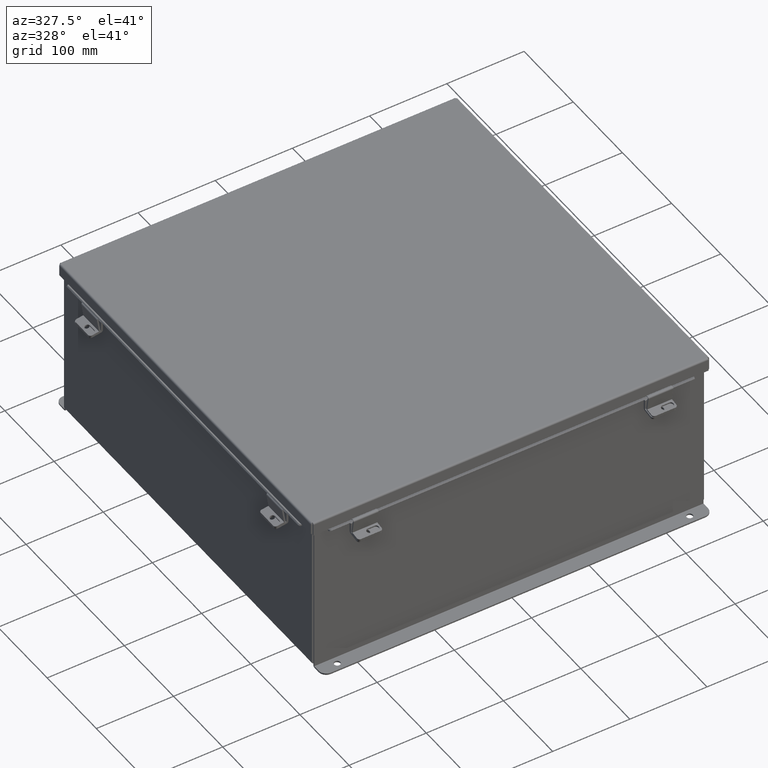
[diagram: clean part render]
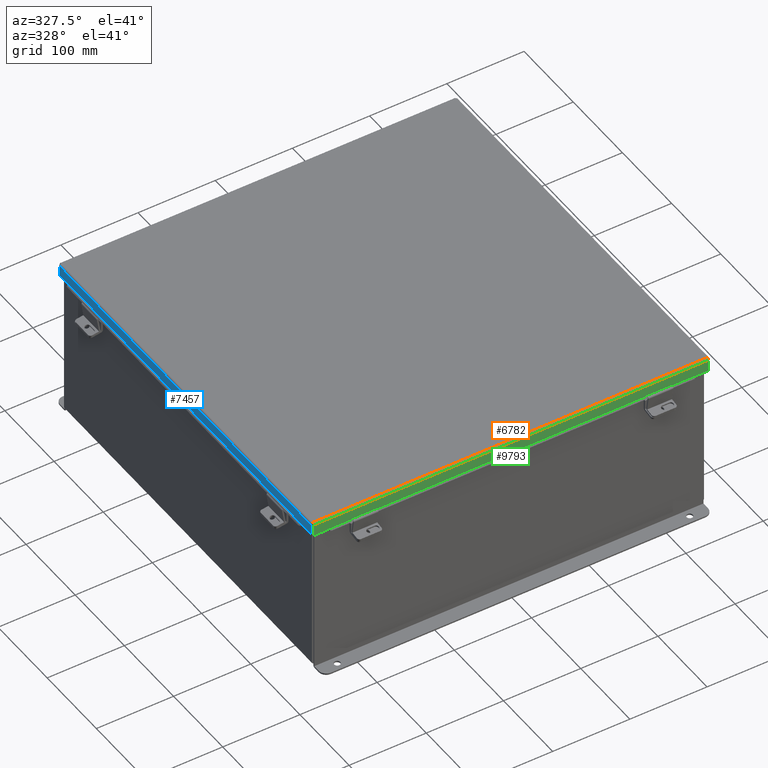
[diagram: same view with three faces highlighted in distinct colors, each labeled with its STEP entity id]
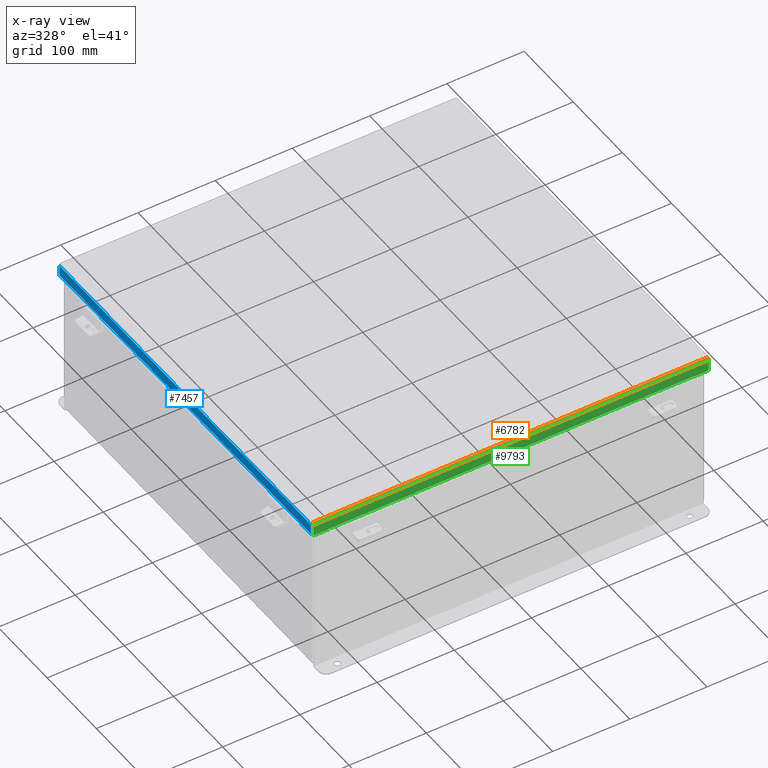
[diagram: x-ray of the same camera — body ghosted, the three highlighted faces saturated]
A machine part, auxiliary view with three faces highlighted in distinct colors.
The next image is the same camera in x-ray (body ghosted, the three faces saturated) — at least one of them is partly hidden behind the body in this view.
Their STEP definitions:

[orange] entity #6782 — the highlighted cylindrical surface (edge-blend (fillet) strip) has radius 2.2276 mm, axis along (-1, 0, -0).
#1 = ORIENTED_EDGE ( 'NONE', *, *, #3556, .T. ) ;
#52 = CARTESIAN_POINT ( 'NONE',  ( -10.07447893218816900, -10.15625000000001400, 0.01300000000000010700 ) ) ;
#137 = EDGE_CURVE ( 'NONE', #9836, #7455, #4497, .T. ) ;
#167 = CARTESIAN_POINT ( 'NONE',  ( -10.07447893218816900, -10.15625000000001400, 0.01300000000000010700 ) ) ;
#227 = CARTESIAN_POINT ( 'NONE',  ( 10.07102038841175300, -10.12244574734181400, -0.05713078207831037700 ) ) ;
#597 = ORIENTED_EDGE ( 'NONE', *, *, #4188, .F. ) ;
#992 = CARTESIAN_POINT ( 'NONE',  ( 10.06953815536472500, -10.09150528945832200, -0.07241740374380169200 ) ) ;
#1298 = CARTESIAN_POINT ( 'NONE',  ( 10.07447893218816900, -10.15625000000001400, 0.01300000000000229300 ) ) ;
#1766 = CARTESIAN_POINT ( 'NONE',  ( 10.06855000000003600, -10.06855000000001400, -0.07469999999999797600 ) ) ;
#2060 = ORIENTED_EDGE ( 'NONE', *, *, #137, .F. ) ;
#2447 = LINE ( 'NONE', #5033, #2930 ) ;
#2530 = VERTEX_POINT ( 'NONE', #1298 ) ;
#2715 = CARTESIAN_POINT ( 'NONE',  ( -10.06953815536472700, -10.09150528945832500, -0.07241740374380344100 ) ) ;
#2930 = VECTOR ( 'NONE', #3471, 39.37007874015748100 ) ;
#3355 = FACE_OUTER_BOUND ( 'NONE', #7904, .T. ) ;
#3455 = VERTEX_POINT ( 'NONE', #52 ) ;
#3471 = DIRECTION ( 'NONE',  ( -1.000000000000000000, 1.075927825196965600E-016, -1.075927825197003600E-016 ) ) ;
#3531 = DIRECTION ( 'NONE',  ( 1.000000000000000000, 3.205297876175390800E-030, 8.208677865577550200E-017 ) ) ;
#3556 = EDGE_CURVE ( 'NONE', #2530, #3455, #2447, .T. ) ;
#4008 = CARTESIAN_POINT ( 'NONE',  ( 10.07447893218816900, -10.15625000000001400, 0.01300000000000229300 ) ) ;
#4047 = CARTESIAN_POINT ( 'NONE',  ( 10.07349077682348000, -10.15396740374382700, -0.009955289458297652400 ) ) ;
#4104 = CARTESIAN_POINT ( 'NONE',  ( 10.06855000000003600, -10.06855000000001400, -0.07469999999999797600 ) ) ;
#4188 = EDGE_CURVE ( 'NONE', #7455, #3455, #7197, .T. ) ;
#4193 = CARTESIAN_POINT ( 'NONE',  ( -10.06904407768237800, -10.08002990315500600, -0.07469999999999210600 ) ) ;
#4308 = CARTESIAN_POINT ( 'NONE',  ( -10.07102038841175500, -10.12244574734181200, -0.05713078207831287500 ) ) ;
#4431 = DIRECTION ( 'NONE',  ( -1.000000000000000000, -3.205297876175390800E-030, -8.208677865577550200E-017 ) ) ;
#4477 = CARTESIAN_POINT ( 'NONE',  ( -10.07052631072941700, -10.11271738457854100, -0.06363106625866074600 ) ) ;
#4497 = LINE ( 'NONE', #5182, #7057 ) ;
#4643 = CARTESIAN_POINT ( 'NONE',  ( -10.07398485450582400, -10.15625000000001400, 0.001520096845013949100 ) ) ;
#4800 = CARTESIAN_POINT ( 'NONE',  ( 10.07398485450582400, -10.15625000000001200, 0.001520096845018755800 ) ) ;
#4823 = CARTESIAN_POINT ( 'NONE',  ( 10.07200854377644600, -10.13868078207833400, -0.04089574734178955100 ) ) ;
#4905 = CARTESIAN_POINT ( 'NONE',  ( -10.07349077682348000, -10.15396740374382400, -0.009955289458302082900 ) ) ;
#5033 = CARTESIAN_POINT ( 'NONE',  ( -10.15625000000003200, -10.15625000000001200, 0.01300000000000010700 ) ) ;
#5037 = CARTESIAN_POINT ( 'NONE',  ( 10.07447893218816900, -10.06855000000001400, 0.01300000000000994100 ) ) ;
#5182 = CARTESIAN_POINT ( 'NONE',  ( 10.07447893218816900, -10.06855000000001400, -0.07469999999999033000 ) ) ;
#5543 = B_SPLINE_CURVE_WITH_KNOTS ( 'NONE', 3,
 ( #4008, #4800, #4047, #9320, #4823, #227, #5585, #992, #6329, #1766 ),
 .UNSPECIFIED., .F., .F.,
 ( 4, 2, 2, 2, 4 ),
 ( 0.0000000000000000000, 0.2500000000000000000, 0.5000000000000000000, 0.7500000000000000000, 1.000000000000000000 ),
 .UNSPECIFIED. ) ;
#5585 = CARTESIAN_POINT ( 'NONE',  ( 10.07052631072941500, -10.11271738457854300, -0.06363106625865856700 ) ) ;
#5958 = AXIS2_PLACEMENT_3D ( 'NONE', #5037, #3531, #8043 ) ;
#6148 = CARTESIAN_POINT ( 'NONE',  ( -10.07200854377644800, -10.13868078207833400, -0.04089574734179279200 ) ) ;
#6329 = CARTESIAN_POINT ( 'NONE',  ( 10.06904407768238100, -10.08002990315500600, -0.07469999999999046800 ) ) ;
#6782 = ADVANCED_FACE ( 'NONE', ( #3355 ), #9149, .T. ) ;
#7057 = VECTOR ( 'NONE', #4431, 39.37007874015748100 ) ;
#7197 = B_SPLINE_CURVE_WITH_KNOTS ( 'NONE', 3,
 ( #8222, #4193, #2715, #4477, #4308, #6148, #8838, #4905, #4643, #167 ),
 .UNSPECIFIED., .F., .F.,
 ( 4, 2, 2, 2, 4 ),
 ( 0.0000000000000000000, 0.2500000000000000000, 0.5000000000000000000, 0.7500000000000000000, 1.000000000000000000 ),
 .UNSPECIFIED. ) ;
#7235 = CARTESIAN_POINT ( 'NONE',  ( -10.06855000000003200, -10.06855000000001400, -0.07470000000000015500 ) ) ;
#7271 = EDGE_CURVE ( 'NONE', #2530, #9836, #5543, .T. ) ;
#7455 = VERTEX_POINT ( 'NONE', #7235 ) ;
#7904 = EDGE_LOOP ( 'NONE', ( #2060, #8421, #1, #597 ) ) ;
#8043 = DIRECTION ( 'NONE',  ( 0.0000000000000000000, -1.000000000000000000, 0.0000000000000000000 ) ) ;
#8222 = CARTESIAN_POINT ( 'NONE',  ( -10.06855000000003200, -10.06855000000001400, -0.07470000000000015500 ) ) ;
#8421 = ORIENTED_EDGE ( 'NONE', *, *, #7271, .F. ) ;
#8838 = CARTESIAN_POINT ( 'NONE',  ( -10.07250262145879000, -10.14518106625868100, -0.03116738457852079700 ) ) ;
#9149 = CYLINDRICAL_SURFACE ( 'NONE', #5958, 0.08770000000000026400 ) ;
#9320 = CARTESIAN_POINT ( 'NONE',  ( 10.07250262145879200, -10.14518106625868500, -0.03116738457851715000 ) ) ;
#9836 = VERTEX_POINT ( 'NONE', #4104 ) ;

[blue] entity #7457 — the highlighted planar face has unit normal (1, -0, 0).
#6 = CARTESIAN_POINT ( 'NONE',  ( 10.15625000000003900, 9.324478932188135600, 0.5502999999999999000 ) ) ;
#48 = LINE ( 'NONE', #1828, #7670 ) ;
#49 = CARTESIAN_POINT ( 'NONE',  ( 10.15625000000003900, -9.324478932188133800, 0.5347115427318777100 ) ) ;
#343 = VECTOR ( 'NONE', #9206, 39.37007874015748100 ) ;
#352 = EDGE_CURVE ( 'NONE', #4761, #5396, #2510, .T. ) ;
#424 = DIRECTION ( 'NONE',  ( -1.000000000000000000, -3.214874041279299500E-030, 3.971430846686186800E-015 ) ) ;
#568 = VERTEX_POINT ( 'NONE', #2591 ) ;
#748 = VECTOR ( 'NONE', #7269, 39.37007874015748100 ) ;
#752 = EDGE_CURVE ( 'NONE', #7569, #5686, #1220, .T. ) ;
#788 = EDGE_CURVE ( 'NONE', #5686, #3839, #2049, .T. ) ;
#1128 = ORIENTED_EDGE ( 'NONE', *, *, #4132, .F. ) ;
#1220 = LINE ( 'NONE', #49, #748 ) ;
#1385 = DIRECTION ( 'NONE',  ( 0.0000000000000000000, 7.009925220119831300E-014, 1.000000000000000000 ) ) ;
#1398 = ORIENTED_EDGE ( 'NONE', *, *, #352, .F. ) ;
#1439 = EDGE_CURVE ( 'NONE', #5396, #2475, #48, .T. ) ;
#1686 = LINE ( 'NONE', #7488, #3500 ) ;
#1760 = ORIENTED_EDGE ( 'NONE', *, *, #1439, .F. ) ;
#1827 = LINE ( 'NONE', #7784, #5903 ) ;
#1828 = CARTESIAN_POINT ( 'NONE',  ( 10.15625000000003600, -10.07447893218814800, 0.0000000000000000000 ) ) ;
#2010 = ORIENTED_EDGE ( 'NONE', *, *, #4513, .T. ) ;
#2049 = LINE ( 'NONE', #6363, #3258 ) ;
#2109 = ORIENTED_EDGE ( 'NONE', *, *, #788, .F. ) ;
#2381 = EDGE_CURVE ( 'NONE', #568, #2475, #2988, .T. ) ;
#2475 = VERTEX_POINT ( 'NONE', #7522 ) ;
#2510 = LINE ( 'NONE', #3992, #343 ) ;
#2591 = CARTESIAN_POINT ( 'NONE',  ( 10.15625000000003900, -9.324478932188133800, 0.5502999999999999000 ) ) ;
#2594 = VECTOR ( 'NONE', #3192, 39.37007874015748100 ) ;
#2642 = DIRECTION ( 'NONE',  ( -1.401985044024124300E-013, -7.009925220120601200E-014, -1.000000000000000000 ) ) ;
#2690 = CARTESIAN_POINT ( 'NONE',  ( 10.15625000000003600, 0.0000000000000000000, -4.043135030623109600E-014 ) ) ;
#2825 = VERTEX_POINT ( 'NONE', #5714 ) ;
#2988 = LINE ( 'NONE', #8180, #4180 ) ;
#3192 = DIRECTION ( 'NONE',  ( 3.971430846686186800E-015, 1.846427556282924300E-029, 1.000000000000000000 ) ) ;
#3258 = VECTOR ( 'NONE', #1385, 39.37007874015748100 ) ;
#3500 = VECTOR ( 'NONE', #8553, 39.37007874015748100 ) ;
#3589 = DIRECTION ( 'NONE',  ( 3.971430846686186800E-015, 1.846427556282924300E-029, 1.000000000000000000 ) ) ;
#3837 = DIRECTION ( 'NONE',  ( -3.166671605124525800E-030, -1.000000000000000000, -1.853823127269377700E-029 ) ) ;
#3839 = VERTEX_POINT ( 'NONE', #6 ) ;
#3992 = CARTESIAN_POINT ( 'NONE',  ( 10.15625000000003600, -10.15625000000001600, 0.01300000000000010700 ) ) ;
#4052 = ORIENTED_EDGE ( 'NONE', *, *, #752, .F. ) ;
#4132 = EDGE_CURVE ( 'NONE', #568, #7569, #1827, .T. ) ;
#4180 = VECTOR ( 'NONE', #3837, 39.37007874015748100 ) ;
#4211 = AXIS2_PLACEMENT_3D ( 'NONE', #2690, #424, #5760 ) ;
#4488 = EDGE_LOOP ( 'NONE', ( #1128, #7115, #1760, #1398, #2010, #7780, #2109, #4052 ) ) ;
#4513 = EDGE_CURVE ( 'NONE', #4761, #2825, #7339, .T. ) ;
#4542 = CARTESIAN_POINT ( 'NONE',  ( 10.15625000000003600, -10.07447893218815200, 0.01300000000000010700 ) ) ;
#4761 = VERTEX_POINT ( 'NONE', #9397 ) ;
#5396 = VERTEX_POINT ( 'NONE', #4542 ) ;
#5686 = VERTEX_POINT ( 'NONE', #6990 ) ;
#5714 = CARTESIAN_POINT ( 'NONE',  ( 10.15625000000003900, 10.07447893218811600, 0.5502999999999999000 ) ) ;
#5760 = DIRECTION ( 'NONE',  ( 3.971430846686186800E-015, 1.846427556282924000E-029, 1.000000000000000000 ) ) ;
#5855 = EDGE_CURVE ( 'NONE', #2825, #3839, #1686, .T. ) ;
#5903 = VECTOR ( 'NONE', #2642, 39.37007874015748100 ) ;
#6363 = CARTESIAN_POINT ( 'NONE',  ( 10.15625000000003900, 9.324478932188132100, 0.5347115427318766000 ) ) ;
#6913 = FACE_OUTER_BOUND ( 'NONE', #4488, .T. ) ;
#6990 = CARTESIAN_POINT ( 'NONE',  ( 10.15625000000003900, 9.324478932188132100, 0.5347115427318766000 ) ) ;
#7115 = ORIENTED_EDGE ( 'NONE', *, *, #2381, .T. ) ;
#7269 = DIRECTION ( 'NONE',  ( 3.166671605124525800E-030, 1.000000000000000000, 1.853823127269377700E-029 ) ) ;
#7339 = LINE ( 'NONE', #7731, #2594 ) ;
#7457 = ADVANCED_FACE ( 'NONE', ( #6913 ), #8760, .F. ) ;
#7488 = CARTESIAN_POINT ( 'NONE',  ( 10.15625000000003900, -4.268512490100411300E-018, 0.5502999999999999000 ) ) ;
#7522 = CARTESIAN_POINT ( 'NONE',  ( 10.15625000000003900, -10.07447893218814800, 0.5502999999999999000 ) ) ;
#7569 = VERTEX_POINT ( 'NONE', #8900 ) ;
#7670 = VECTOR ( 'NONE', #3589, 39.37007874015748100 ) ;
#7731 = CARTESIAN_POINT ( 'NONE',  ( 10.15625000000003600, 10.07447893218811800, -4.043135030623109600E-014 ) ) ;
#7780 = ORIENTED_EDGE ( 'NONE', *, *, #5855, .T. ) ;
#7784 = CARTESIAN_POINT ( 'NONE',  ( 10.15625000000004100, -9.324478932188133800, 0.5502999999999976800 ) ) ;
#8180 = CARTESIAN_POINT ( 'NONE',  ( 10.15625000000003900, -4.268512490100411300E-018, 0.5502999999999999000 ) ) ;
#8553 = DIRECTION ( 'NONE',  ( -3.166671605124525800E-030, -1.000000000000000000, -1.853823127269377700E-029 ) ) ;
#8760 = PLANE ( 'NONE',  #4211 ) ;
#8900 = CARTESIAN_POINT ( 'NONE',  ( 10.15625000000003900, -9.324478932188133800, 0.5347115427318777100 ) ) ;
#9206 = DIRECTION ( 'NONE',  ( -3.166671605124525800E-030, -1.000000000000000000, -1.853823127269377700E-029 ) ) ;
#9397 = CARTESIAN_POINT ( 'NONE',  ( 10.15625000000003600, 10.07447893218811600, 0.01299999999999901400 ) ) ;

[green] entity #9793 — the highlighted planar face has unit normal (0, 1, 0).
#38 = LINE ( 'NONE', #2777, #9296 ) ;
#52 = CARTESIAN_POINT ( 'NONE',  ( -10.07447893218816900, -10.15625000000001400, 0.01300000000000010700 ) ) ;
#73 = EDGE_CURVE ( 'NONE', #3455, #4444, #7417, .T. ) ;
#251 = DIRECTION ( 'NONE',  ( 1.075927825196965200E-016, 1.000000000000000000, 1.873544649899903000E-029 ) ) ;
#349 = CARTESIAN_POINT ( 'NONE',  ( -10.07447893218816600, -10.15625000000001400, 0.6122999999999994000 ) ) ;
#479 = VECTOR ( 'NONE', #8574, 39.37007874015748100 ) ;
#669 = ORIENTED_EDGE ( 'NONE', *, *, #6855, .T. ) ;
#702 = ORIENTED_EDGE ( 'NONE', *, *, #7786, .F. ) ;
#1046 = VERTEX_POINT ( 'NONE', #1541 ) ;
#1074 = VECTOR ( 'NONE', #2028, 39.37007874015748100 ) ;
#1165 = EDGE_CURVE ( 'NONE', #2792, #1046, #4295, .T. ) ;
#1298 = CARTESIAN_POINT ( 'NONE',  ( 10.07447893218816900, -10.15625000000001400, 0.01300000000000229300 ) ) ;
#1541 = CARTESIAN_POINT ( 'NONE',  ( -9.324478932188164000, -10.15625000000001400, 0.5967115427318793200 ) ) ;
#1658 = ORIENTED_EDGE ( 'NONE', *, *, #73, .F. ) ;
#1772 = EDGE_CURVE ( 'NONE', #8659, #8533, #2528, .T. ) ;
#1837 = DIRECTION ( 'NONE',  ( 7.009925220120805700E-014, 1.401985044024155100E-013, -1.000000000000000000 ) ) ;
#2028 = DIRECTION ( 'NONE',  ( -1.000000000000000000, 1.075927825196965600E-016, 3.362274453740340600E-018 ) ) ;
#2174 = DIRECTION ( 'NONE',  ( -1.000000000000000000, 1.075927825196965600E-016, 3.362274453740340600E-018 ) ) ;
#2265 = CARTESIAN_POINT ( 'NONE',  ( 9.324478932188167600, -10.15625000000001400, 0.5967115427318880900 ) ) ;
#2447 = LINE ( 'NONE', #5033, #2930 ) ;
#2520 = DIRECTION ( 'NONE',  ( 0.0000000000000000000, -1.401985044024099800E-013, 1.000000000000000000 ) ) ;
#2528 = LINE ( 'NONE', #7074, #5047 ) ;
#2530 = VERTEX_POINT ( 'NONE', #1298 ) ;
#2777 = CARTESIAN_POINT ( 'NONE',  ( -1.099141966200855900E-015, -10.15625000000001400, 0.6123000000000005100 ) ) ;
#2792 = VERTEX_POINT ( 'NONE', #7902 ) ;
#2801 = CARTESIAN_POINT ( 'NONE',  ( -1.099141966200855900E-015, -10.15625000000001400, 0.6123000000000005100 ) ) ;
#2909 = CARTESIAN_POINT ( 'NONE',  ( 10.07447893218816900, -10.15625000000001400, 0.6122999999999994000 ) ) ;
#2930 = VECTOR ( 'NONE', #3471, 39.37007874015748100 ) ;
#3249 = FACE_OUTER_BOUND ( 'NONE', #6774, .T. ) ;
#3455 = VERTEX_POINT ( 'NONE', #52 ) ;
#3471 = DIRECTION ( 'NONE',  ( -1.000000000000000000, 1.075927825196965600E-016, -1.075927825197003600E-016 ) ) ;
#3556 = EDGE_CURVE ( 'NONE', #2530, #3455, #2447, .T. ) ;
#4295 = LINE ( 'NONE', #6467, #4551 ) ;
#4300 = LINE ( 'NONE', #5904, #6079 ) ;
#4332 = EDGE_CURVE ( 'NONE', #2792, #4444, #38, .T. ) ;
#4444 = VERTEX_POINT ( 'NONE', #349 ) ;
#4551 = VECTOR ( 'NONE', #1837, 39.37007874015748100 ) ;
#4569 = LINE ( 'NONE', #6314, #479 ) ;
#4853 = CARTESIAN_POINT ( 'NONE',  ( -1.092739197465705300E-015, -10.15625000000001400, 0.0000000000000000000 ) ) ;
#4917 = LINE ( 'NONE', #2801, #1074 ) ;
#4936 = CARTESIAN_POINT ( 'NONE',  ( -10.07447893218816600, -10.15625000000001400, 0.0000000000000000000 ) ) ;
#5033 = CARTESIAN_POINT ( 'NONE',  ( -10.15625000000003200, -10.15625000000001200, 0.01300000000000010700 ) ) ;
#5047 = VECTOR ( 'NONE', #2520, 39.37007874015748100 ) ;
#5617 = DIRECTION ( 'NONE',  ( -1.000000000000000000, 1.075927825196965200E-016, 0.0000000000000000000 ) ) ;
#5904 = CARTESIAN_POINT ( 'NONE',  ( -9.324478932188165800, -10.15625000000001200, 0.5967115427318793200 ) ) ;
#6079 = VECTOR ( 'NONE', #6673, 39.37007874015748100 ) ;
#6261 = VECTOR ( 'NONE', #9819, 39.37007874015748100 ) ;
#6314 = CARTESIAN_POINT ( 'NONE',  ( 10.07447893218816900, -10.15625000000001400, -1.092739197465705300E-015 ) ) ;
#6467 = CARTESIAN_POINT ( 'NONE',  ( -9.324478932188165800, -10.15625000000001400, 0.6122999999999994000 ) ) ;
#6672 = EDGE_CURVE ( 'NONE', #2530, #9615, #4569, .T. ) ;
#6673 = DIRECTION ( 'NONE',  ( 1.000000000000000000, 3.215975411700707400E-030, -0.0000000000000000000 ) ) ;
#6774 = EDGE_LOOP ( 'NONE', ( #9099, #7822, #1658, #7451, #7141, #669, #9492, #702 ) ) ;
#6855 = EDGE_CURVE ( 'NONE', #9615, #8533, #4917, .T. ) ;
#7074 = CARTESIAN_POINT ( 'NONE',  ( 9.324478932188167600, -10.15625000000001200, 0.5967115427318880900 ) ) ;
#7141 = ORIENTED_EDGE ( 'NONE', *, *, #6672, .T. ) ;
#7417 = LINE ( 'NONE', #4936, #6261 ) ;
#7451 = ORIENTED_EDGE ( 'NONE', *, *, #3556, .F. ) ;
#7786 = EDGE_CURVE ( 'NONE', #1046, #8659, #4300, .T. ) ;
#7822 = ORIENTED_EDGE ( 'NONE', *, *, #4332, .T. ) ;
#7902 = CARTESIAN_POINT ( 'NONE',  ( -9.324478932188165800, -10.15625000000001400, 0.6122999999999994000 ) ) ;
#7980 = AXIS2_PLACEMENT_3D ( 'NONE', #4853, #251, #5617 ) ;
#8533 = VERTEX_POINT ( 'NONE', #8925 ) ;
#8574 = DIRECTION ( 'NONE',  ( 0.0000000000000000000, 1.846427556282924300E-029, 1.000000000000000000 ) ) ;
#8588 = PLANE ( 'NONE',  #7980 ) ;
#8659 = VERTEX_POINT ( 'NONE', #2265 ) ;
#8925 = CARTESIAN_POINT ( 'NONE',  ( 9.324478932188167600, -10.15625000000001400, 0.6123000000000080600 ) ) ;
#9099 = ORIENTED_EDGE ( 'NONE', *, *, #1165, .F. ) ;
#9296 = VECTOR ( 'NONE', #2174, 39.37007874015748100 ) ;
#9492 = ORIENTED_EDGE ( 'NONE', *, *, #1772, .F. ) ;
#9615 = VERTEX_POINT ( 'NONE', #2909 ) ;
#9793 = ADVANCED_FACE ( 'NONE', ( #3249 ), #8588, .F. ) ;
#9819 = DIRECTION ( 'NONE',  ( -0.0000000000000000000, 1.846427556282924300E-029, 1.000000000000000000 ) ) ;